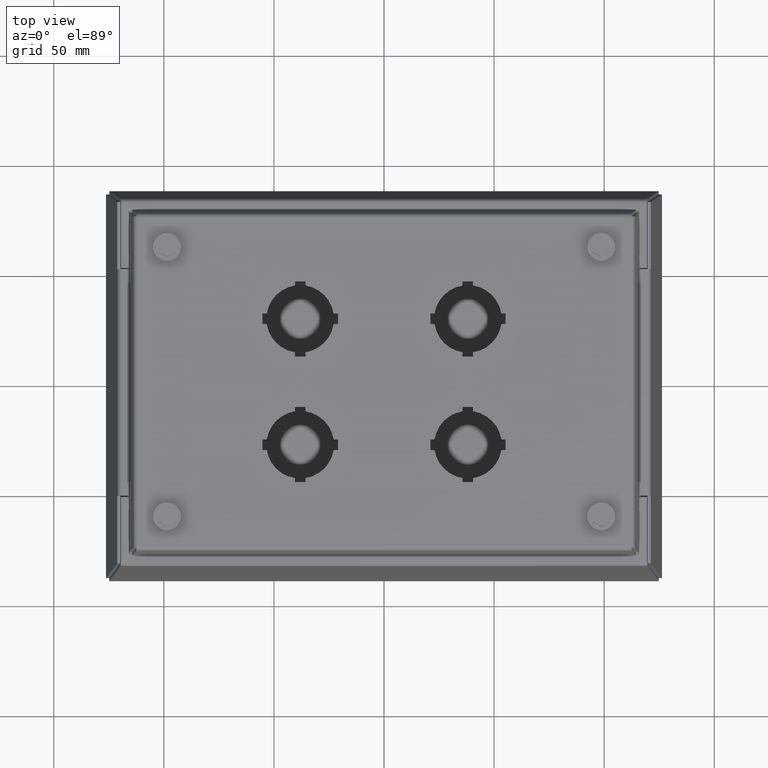
[diagram: clean part render]
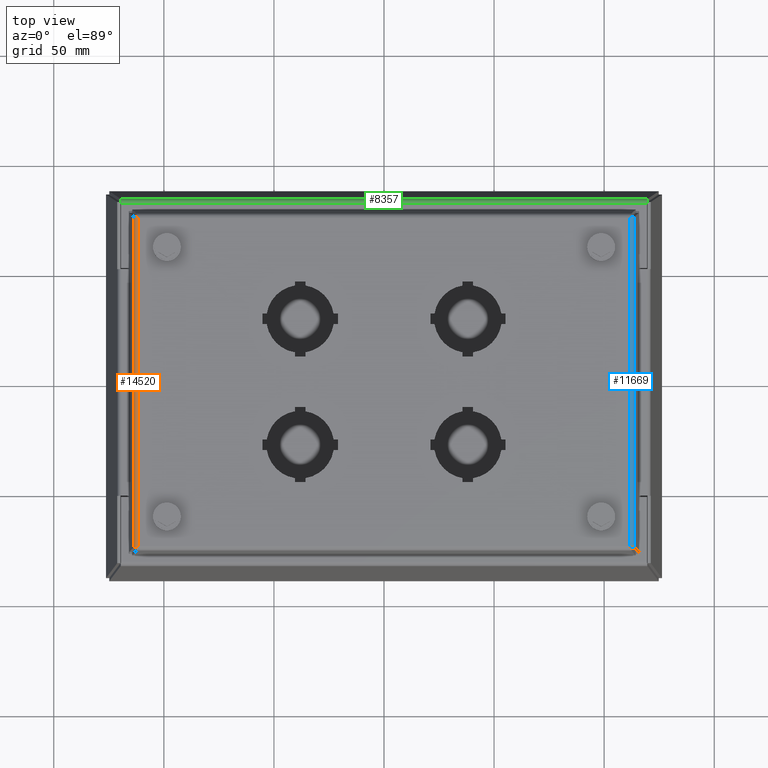
[diagram: same view with three faces highlighted in distinct colors, each labeled with its STEP entity id]
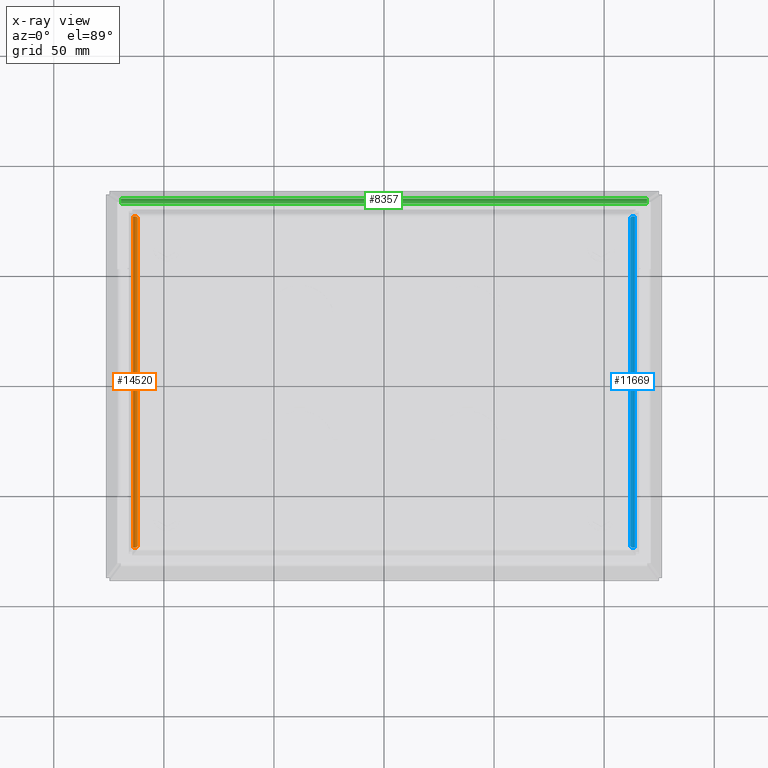
[diagram: x-ray of the same camera — body ghosted, the three highlighted faces saturated]
A machine part, top view with three faces highlighted in distinct colors.
The next image is the same camera in x-ray (body ghosted, the three faces saturated) — at least one of them is partly hidden behind the body in this view.
Their STEP definitions:

[orange] entity #14520 — the highlighted cylindrical surface (edge-blend (fillet) strip) has radius 2.1844 mm, axis along (0, 1, 0).
#133 = EDGE_CURVE ( 'NONE', #10820, #10084, #3377, .T. ) ;
#184 = FACE_OUTER_BOUND ( 'NONE', #6803, .T. ) ;
#279 = VERTEX_POINT ( 'NONE', #15464 ) ;
#950 =( BOUNDED_CURVE ( )  B_SPLINE_CURVE ( 3, ( #4783, #15430, #14485, #4701 ),
 .UNSPECIFIED., .F., .F. ) 
 B_SPLINE_CURVE_WITH_KNOTS ( ( 4, 4 ),
 ( 4.712388980384730530, 5.050903557429633928 ),
 .UNSPECIFIED. ) 
 CURVE ( )  GEOMETRIC_REPRESENTATION_ITEM ( )  RATIONAL_B_SPLINE_CURVE ( ( 1.000000000000000000, 0.9904734324907800147, 0.9904734324907800147, 1.000000000000000000 ) ) 
 REPRESENTATION_ITEM ( '' )  );
#1208 = CARTESIAN_POINT ( 'NONE',  ( -4.485530898477792405, 2.962785501157493950, 4.460933743279369423 ) ) ;
#1298 = VERTEX_POINT ( 'NONE', #2867 ) ;
#1393 = ORIENTED_EDGE ( 'NONE', *, *, #9729, .T. ) ;
#1772 = CARTESIAN_POINT ( 'NONE',  ( -4.485530898477793293, -2.962785501157497059, 4.460933743279355213 ) ) ;
#1804 = EDGE_CURVE ( 'NONE', #11990, #279, #13943, .T. ) ;
#2051 = DIRECTION ( 'NONE',  ( 0.000000000000000000, 1.000000000000000000, 1.224646799147350002E-16 ) ) ;
#2063 = EDGE_CURVE ( 'NONE', #279, #10820, #950, .T. ) ;
#2149 = AXIS2_PLACEMENT_3D ( 'NONE', #4988, #9761, #14375 ) ;
#2285 = CARTESIAN_POINT ( 'NONE',  ( -4.400837431718740866, 3.006499999999999950, 4.532000000000000917 ) ) ;
#2867 = CARTESIAN_POINT ( 'NONE',  ( -4.429396856556104822, -2.962785501157496615, 4.527119413539296922 ) ) ;
#2972 = EDGE_CURVE ( 'NONE', #10084, #9900, #8807, .T. ) ;
#3377 = CIRCLE ( 'NONE', #9374, 0.08600000000000011802 ) ;
#3432 = ORIENTED_EDGE ( 'NONE', *, *, #10095, .F. ) ;
#3549 =( BOUNDED_CURVE ( )  B_SPLINE_CURVE ( 3, ( #7072, #4884, #13112, #8228 ),
 .UNSPECIFIED., .F., .F. ) 
 B_SPLINE_CURVE_WITH_KNOTS ( ( 4, 4 ),
 ( 1.570796326794966502, 1.909310903839848805 ),
 .UNSPECIFIED. ) 
 CURVE ( )  GEOMETRIC_REPRESENTATION_ITEM ( )  RATIONAL_B_SPLINE_CURVE ( ( 1.000000000000000000, 0.9904734324907812359, 0.9904734324907812359, 1.000000000000000000 ) ) 
 REPRESENTATION_ITEM ( '' )  );
#4701 = CARTESIAN_POINT ( 'NONE',  ( -4.429396856556103934, 2.962785501157491730, 4.527119413539295145 ) ) ;
#4783 = CARTESIAN_POINT ( 'NONE',  ( -4.400837431718724879, 2.934337431718765377, 4.531999999999992035 ) ) ;
#4884 = CARTESIAN_POINT ( 'NONE',  ( -4.410588139543373032, -2.944050120782046420, 4.531999999999998252 ) ) ;
#4934 = CARTESIAN_POINT ( 'NONE',  ( -4.400837431718740866, 2.934337431718752054, 4.446000000000000618 ) ) ;
#4988 = CARTESIAN_POINT ( 'NONE',  ( -4.400837431718740866, -2.962785501157496615, 4.445999999999999730 ) ) ;
#5389 = ORIENTED_EDGE ( 'NONE', *, *, #1804, .T. ) ;
#5511 = DIRECTION ( 'NONE',  ( 0.000000000000000000, 0.000000000000000000, 1.000000000000000000 ) ) ;
#5835 = ORIENTED_EDGE ( 'NONE', *, *, #2972, .T. ) ;
#5958 = VECTOR ( 'NONE', #11018, 39.37007874015748143 ) ;
#6685 = DIRECTION ( 'NONE',  ( -0.000000000000000000, -1.000000000000000000, -1.836970198721026976E-16 ) ) ;
#6803 = EDGE_LOOP ( 'NONE', ( #14359, #5835, #1393, #3432, #5389, #8260 ) ) ;
#7072 = CARTESIAN_POINT ( 'NONE',  ( -4.400837431718745307, -2.934337431718749389, 4.532000000000000028 ) ) ;
#8094 = CIRCLE ( 'NONE', #2149, 0.08600000000000011802 ) ;
#8228 = CARTESIAN_POINT ( 'NONE',  ( -4.429396856556104822, -2.962785501157496615, 4.527119413539296922 ) ) ;
#8260 = ORIENTED_EDGE ( 'NONE', *, *, #2063, .T. ) ;
#8807 = LINE ( 'NONE', #14605, #5958 ) ;
#8897 = CARTESIAN_POINT ( 'NONE',  ( -4.429396856556103934, 2.962785501157491730, 4.527119413539295145 ) ) ;
#9168 = VECTOR ( 'NONE', #2051, 39.37007874015748143 ) ;
#9374 = AXIS2_PLACEMENT_3D ( 'NONE', #10053, #6685, #5511 ) ;
#9729 = EDGE_CURVE ( 'NONE', #9900, #1298, #8094, .T. ) ;
#9761 = DIRECTION ( 'NONE',  ( 0.000000000000000000, 1.000000000000000000, 1.836970198721026976E-16 ) ) ;
#9900 = VERTEX_POINT ( 'NONE', #1772 ) ;
#10053 = CARTESIAN_POINT ( 'NONE',  ( -4.400837431718740866, 2.962785501157491730, 4.446000000000000618 ) ) ;
#10084 = VERTEX_POINT ( 'NONE', #1208 ) ;
#10095 = EDGE_CURVE ( 'NONE', #11990, #1298, #3549, .T. ) ;
#10820 = VERTEX_POINT ( 'NONE', #8897 ) ;
#11018 = DIRECTION ( 'NONE',  ( -0.000000000000000000, -1.000000000000000000, -1.836970198721026976E-16 ) ) ;
#11051 = DIRECTION ( 'NONE',  ( 0.000000000000000000, 1.000000000000000000, 1.836970198721026976E-16 ) ) ;
#11990 = VERTEX_POINT ( 'NONE', #13337 ) ;
#12148 = DIRECTION ( 'NONE',  ( 0.000000000000000000, 0.000000000000000000, 1.000000000000000000 ) ) ;
#13112 = CARTESIAN_POINT ( 'NONE',  ( -4.420199511203468212, -2.953624016963258381, 4.530357490367530993 ) ) ;
#13337 = CARTESIAN_POINT ( 'NONE',  ( -4.400837431718745307, -2.934337431718749389, 4.532000000000000028 ) ) ;
#13943 = LINE ( 'NONE', #2285, #9168 ) ;
#13983 = AXIS2_PLACEMENT_3D ( 'NONE', #4934, #11051, #12148 ) ;
#14359 = ORIENTED_EDGE ( 'NONE', *, *, #133, .T. ) ;
#14375 = DIRECTION ( 'NONE',  ( 0.000000000000000000, 0.000000000000000000, 1.000000000000000000 ) ) ;
#14402 = CYLINDRICAL_SURFACE ( 'NONE', #13983, 0.08600000000000011802 ) ;
#14485 = CARTESIAN_POINT ( 'NONE',  ( -4.420199511203468212, 2.953624016963256160, 4.530357490367532769 ) ) ;
#14520 = ADVANCED_FACE ( 'NONE', ( #184 ), #14402, .T. ) ;
#14605 = CARTESIAN_POINT ( 'NONE',  ( -4.485530898477790629, 2.934337431718752054, 4.460933743279355213 ) ) ;
#15430 = CARTESIAN_POINT ( 'NONE',  ( -4.410588139543371256, 2.944050120782044200, 4.532000000000000028 ) ) ;
#15464 = CARTESIAN_POINT ( 'NONE',  ( -4.400837431718724879, 2.934337431718765377, 4.531999999999992035 ) ) ;

[blue] entity #11669 — the highlighted cylindrical surface (edge-blend (fillet) strip) has radius 2.1844 mm, axis along (0, -1, -0).
#101 = DIRECTION ( 'NONE',  ( 1.224646799147350002E-16, -1.000000000000000000, -1.836970198721026976E-16 ) ) ;
#218 = CARTESIAN_POINT ( 'NONE',  ( 4.400837431718741755, 3.006499999999999950, 4.532000000000000917 ) ) ;
#331 = VECTOR ( 'NONE', #1241, 39.37007874015748143 ) ;
#509 = FACE_OUTER_BOUND ( 'NONE', #9512, .T. ) ;
#707 = CARTESIAN_POINT ( 'NONE',  ( 4.400837431718744419, 2.934337431718726741, 4.532000000000000917 ) ) ;
#887 = VERTEX_POINT ( 'NONE', #707 ) ;
#1001 = CARTESIAN_POINT ( 'NONE',  ( 4.410588139543389907, 2.944050120782020663, 4.532000000000000028 ) ) ;
#1241 = DIRECTION ( 'NONE',  ( -1.224646799147350002E-16, 1.000000000000000000, 1.836970198721026976E-16 ) ) ;
#1357 =( BOUNDED_CURVE ( )  B_SPLINE_CURVE ( 3, ( #14128, #1001, #10609, #15388 ),
 .UNSPECIFIED., .F., .F. ) 
 B_SPLINE_CURVE_WITH_KNOTS ( ( 4, 4 ),
 ( 1.570796326795071529, 1.909310903840206297 ),
 .UNSPECIFIED. ) 
 CURVE ( )  GEOMETRIC_REPRESENTATION_ITEM ( )  RATIONAL_B_SPLINE_CURVE ( ( 1.000000000000000000, 0.9904734324907670251, 0.9904734324907670251, 1.000000000000000000 ) ) 
 REPRESENTATION_ITEM ( '' )  );
#1509 = CIRCLE ( 'NONE', #9498, 0.08600000000000011802 ) ;
#1591 = VERTEX_POINT ( 'NONE', #7231 ) ;
#1743 = CYLINDRICAL_SURFACE ( 'NONE', #13537, 0.08600000000000011802 ) ;
#1819 = CARTESIAN_POINT ( 'NONE',  ( 4.400837431718740866, -2.934337431718752942, 4.445999999999999730 ) ) ;
#1938 = CARTESIAN_POINT ( 'NONE',  ( 4.400837431718747084, -2.934337431718726297, 4.532000000000000028 ) ) ;
#2246 = CARTESIAN_POINT ( 'NONE',  ( 4.420199511203497522, -2.953624016963239285, 4.530357490367526552 ) ) ;
#2497 = ORIENTED_EDGE ( 'NONE', *, *, #7941, .T. ) ;
#3485 = DIRECTION ( 'NONE',  ( -0.000000000000000000, -1.000000000000000000, -1.224646799147350002E-16 ) ) ;
#4252 = VERTEX_POINT ( 'NONE', #12150 ) ;
#4487 = AXIS2_PLACEMENT_3D ( 'NONE', #11047, #101, #9554 ) ;
#4761 = LINE ( 'NONE', #7186, #331 ) ;
#4926 = ORIENTED_EDGE ( 'NONE', *, *, #5409, .T. ) ;
#5086 = EDGE_CURVE ( 'NONE', #4252, #12065, #1509, .T. ) ;
#5409 = EDGE_CURVE ( 'NONE', #15224, #1591, #12509, .T. ) ;
#5931 = VERTEX_POINT ( 'NONE', #9183 ) ;
#6207 = DIRECTION ( 'NONE',  ( 1.000000000000000000, 0.000000000000000000, -1.270626973797329932E-14 ) ) ;
#6337 = ORIENTED_EDGE ( 'NONE', *, *, #5086, .T. ) ;
#6576 = ORIENTED_EDGE ( 'NONE', *, *, #9562, .T. ) ;
#7020 = CARTESIAN_POINT ( 'NONE',  ( 4.429396856556127915, -2.962785501157496615, 4.527119413539285375 ) ) ;
#7095 = ORIENTED_EDGE ( 'NONE', *, *, #10980, .F. ) ;
#7186 = CARTESIAN_POINT ( 'NONE',  ( 4.485530898366836716, -2.934337431718752942, 4.460933743908607418 ) ) ;
#7231 = CARTESIAN_POINT ( 'NONE',  ( 4.429396856556123474, 2.962785501157491286, 4.527119413539288040 ) ) ;
#7315 = CARTESIAN_POINT ( 'NONE',  ( 4.485530898422316781, 2.962785501102014329, 4.460933743593982648 ) ) ;
#7941 = EDGE_CURVE ( 'NONE', #887, #5931, #11944, .T. ) ;
#8613 = DIRECTION ( 'NONE',  ( -1.224646799147350002E-16, 1.000000000000000000, 1.836970198721026976E-16 ) ) ;
#9183 = CARTESIAN_POINT ( 'NONE',  ( 4.400837431718747084, -2.934337431718726297, 4.532000000000000028 ) ) ;
#9435 =( BOUNDED_CURVE ( )  B_SPLINE_CURVE ( 3, ( #1938, #11493, #2246, #7020 ),
 .UNSPECIFIED., .F., .F. ) 
 B_SPLINE_CURVE_WITH_KNOTS ( ( 4, 4 ),
 ( 4.712388980384909054, 5.050903557430069135 ),
 .UNSPECIFIED. ) 
 CURVE ( )  GEOMETRIC_REPRESENTATION_ITEM ( )  RATIONAL_B_SPLINE_CURVE ( ( 1.000000000000000000, 0.9904734324907655818, 0.9904734324907655818, 1.000000000000000000 ) ) 
 REPRESENTATION_ITEM ( '' )  );
#9498 = AXIS2_PLACEMENT_3D ( 'NONE', #12083, #8613, #6207 ) ;
#9512 = EDGE_LOOP ( 'NONE', ( #7095, #2497, #6576, #6337, #14622, #4926 ) ) ;
#9554 = DIRECTION ( 'NONE',  ( 1.000000000000000000, 0.000000000000000000, 0.000000000000000000 ) ) ;
#9562 = EDGE_CURVE ( 'NONE', #5931, #4252, #9435, .T. ) ;
#10186 = CARTESIAN_POINT ( 'NONE',  ( 4.485530893510687456, -2.962785501157496615, 4.460933742727930529 ) ) ;
#10609 = CARTESIAN_POINT ( 'NONE',  ( 4.420199511203492193, 2.953624016963238841, 4.530357490367529216 ) ) ;
#10980 = EDGE_CURVE ( 'NONE', #887, #1591, #1357, .T. ) ;
#11047 = CARTESIAN_POINT ( 'NONE',  ( 4.400837431718739978, 2.962785501157491286, 4.446000000000001506 ) ) ;
#11297 = DIRECTION ( 'NONE',  ( 1.224646799147350002E-16, -1.000000000000000000, -1.836970198721026976E-16 ) ) ;
#11493 = CARTESIAN_POINT ( 'NONE',  ( 4.410588139543393460, -2.944050120782020219, 4.531999999999998252 ) ) ;
#11601 = VECTOR ( 'NONE', #3485, 39.37007874015748143 ) ;
#11669 = ADVANCED_FACE ( 'NONE', ( #509 ), #1743, .T. ) ;
#11944 = LINE ( 'NONE', #218, #11601 ) ;
#12065 = VERTEX_POINT ( 'NONE', #10186 ) ;
#12083 = CARTESIAN_POINT ( 'NONE',  ( 4.400837431718740866, -2.962785501157496615, 4.445999999999999730 ) ) ;
#12150 = CARTESIAN_POINT ( 'NONE',  ( 4.429396856556127915, -2.962785501157496615, 4.527119413539285375 ) ) ;
#12509 = CIRCLE ( 'NONE', #4487, 0.08600000000000011802 ) ;
#12621 = EDGE_CURVE ( 'NONE', #12065, #15224, #4761, .T. ) ;
#13537 = AXIS2_PLACEMENT_3D ( 'NONE', #1819, #11297, #14740 ) ;
#14128 = CARTESIAN_POINT ( 'NONE',  ( 4.400837431718744419, 2.934337431718726741, 4.532000000000000917 ) ) ;
#14622 = ORIENTED_EDGE ( 'NONE', *, *, #12621, .T. ) ;
#14740 = DIRECTION ( 'NONE',  ( 1.000000000000000000, 0.000000000000000000, 0.000000000000000000 ) ) ;
#15224 = VERTEX_POINT ( 'NONE', #7315 ) ;
#15388 = CARTESIAN_POINT ( 'NONE',  ( 4.429396856556123474, 2.962785501157491286, 4.527119413539288040 ) ) ;

[green] entity #8357 — the highlighted cylindrical surface (edge-blend (fillet) strip) has radius 2.1844 mm, axis along (1, 0, 0).
#502 = ORIENTED_EDGE ( 'NONE', *, *, #5245, .T. ) ;
#1157 = ORIENTED_EDGE ( 'NONE', *, *, #14038, .T. ) ;
#1747 = ORIENTED_EDGE ( 'NONE', *, *, #4168, .F. ) ;
#2434 = DIRECTION ( 'NONE',  ( 1.000000000000000000, 1.563808929424738898E-19, 8.195575321414053458E-21 ) ) ;
#3467 = CARTESIAN_POINT ( 'NONE',  ( -4.706732014307480227, 3.201323397271372606, 3.913999999999999702 ) ) ;
#3775 = FACE_OUTER_BOUND ( 'NONE', #5234, .T. ) ;
#4168 = EDGE_CURVE ( 'NONE', #4599, #5706, #7438, .T. ) ;
#4599 = VERTEX_POINT ( 'NONE', #4724 ) ;
#4603 = CARTESIAN_POINT ( 'NONE',  ( 4.706732014307485557, 3.287205537260265764, 3.918500892236900235 ) ) ;
#4709 = DIRECTION ( 'NONE',  ( 0.000000000000000000, 1.000000000000000000, 0.000000000000000000 ) ) ;
#4724 = CARTESIAN_POINT ( 'NONE',  ( -4.706732014307493550, 3.287205537260266652, 3.918500892236899791 ) ) ;
#5234 = EDGE_LOOP ( 'NONE', ( #1157, #502, #1747, #14023 ) ) ;
#5245 = EDGE_CURVE ( 'NONE', #6553, #5706, #14759, .T. ) ;
#5706 = VERTEX_POINT ( 'NONE', #4603 ) ;
#5745 = DIRECTION ( 'NONE',  ( 1.000000000000000000, 1.563808929424740102E-19, 8.195575321414050449E-21 ) ) ;
#5819 = CARTESIAN_POINT ( 'NONE',  ( -4.706732014307480227, 3.201323397271372606, 3.913999999999999702 ) ) ;
#5823 = LINE ( 'NONE', #7135, #15210 ) ;
#6123 = EDGE_CURVE ( 'NONE', #4599, #12110, #13770, .T. ) ;
#6197 = CARTESIAN_POINT ( 'NONE',  ( -34.23802301932976633, 3.287205537260267540, 3.918500892236906452 ) ) ;
#6553 = VERTEX_POINT ( 'NONE', #15086 ) ;
#7135 = CARTESIAN_POINT ( 'NONE',  ( -4.706732014307480227, 3.201323397271372606, 4.000000000000000000 ) ) ;
#7438 = LINE ( 'NONE', #6197, #10252 ) ;
#8357 = ADVANCED_FACE ( 'NONE', ( #3775 ), #10585, .T. ) ;
#9406 = DIRECTION ( 'NONE',  ( 1.000000000000000000, 1.563808929424740102E-19, 8.195575321414050449E-21 ) ) ;
#9805 = DIRECTION ( 'NONE',  ( 0.000000000000000000, 1.000000000000000000, 0.000000000000000000 ) ) ;
#10103 = CARTESIAN_POINT ( 'NONE',  ( 4.706732014307480227, 3.201323397271372606, 3.913999999999999702 ) ) ;
#10252 = VECTOR ( 'NONE', #2434, 39.37007874015748143 ) ;
#10263 = DIRECTION ( 'NONE',  ( -1.000000000000000000, -1.563808929424740102E-19, -8.195575321414050449E-21 ) ) ;
#10493 = AXIS2_PLACEMENT_3D ( 'NONE', #10103, #10263, #12464 ) ;
#10585 = CYLINDRICAL_SURFACE ( 'NONE', #13108, 0.08600000000000011802 ) ;
#10778 = AXIS2_PLACEMENT_3D ( 'NONE', #3467, #11618, #4709 ) ;
#11618 = DIRECTION ( 'NONE',  ( 1.000000000000000000, 1.563808929424740102E-19, 8.195575321414050449E-21 ) ) ;
#12110 = VERTEX_POINT ( 'NONE', #13937 ) ;
#12464 = DIRECTION ( 'NONE',  ( 0.000000000000000000, 1.000000000000000000, 0.000000000000000000 ) ) ;
#13108 = AXIS2_PLACEMENT_3D ( 'NONE', #5819, #9406, #9805 ) ;
#13770 = CIRCLE ( 'NONE', #10778, 0.08600000000000011802 ) ;
#13937 = CARTESIAN_POINT ( 'NONE',  ( -4.706732014307480227, 3.201323397271372606, 4.000000000000000000 ) ) ;
#14023 = ORIENTED_EDGE ( 'NONE', *, *, #6123, .T. ) ;
#14038 = EDGE_CURVE ( 'NONE', #12110, #6553, #5823, .T. ) ;
#14759 = CIRCLE ( 'NONE', #10493, 0.08600000000000011802 ) ;
#15086 = CARTESIAN_POINT ( 'NONE',  ( 4.706732014307480227, 3.201323397271372606, 4.000000000000000000 ) ) ;
#15210 = VECTOR ( 'NONE', #5745, 39.37007874015748143 ) ;